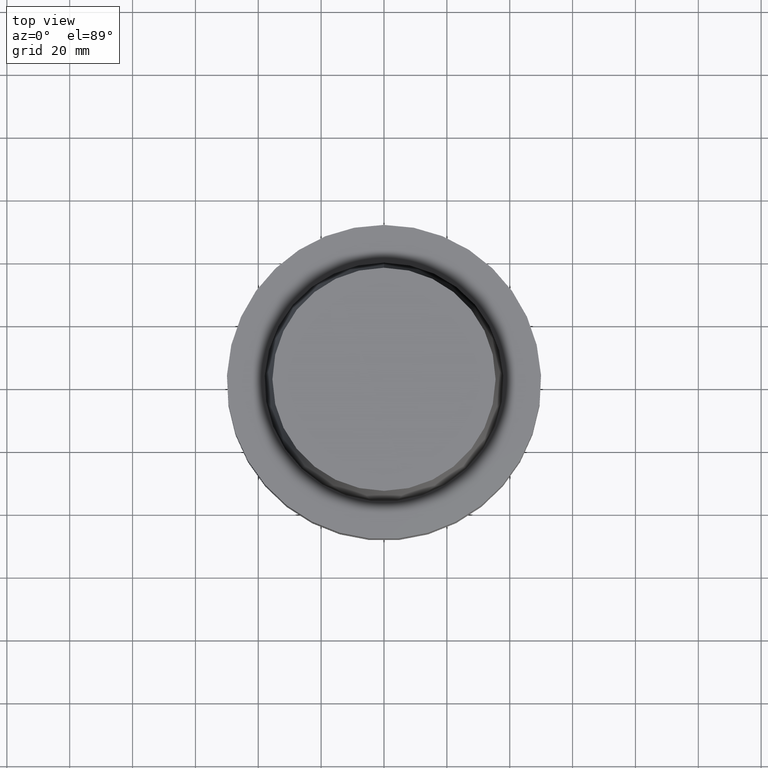
[diagram: clean part render]
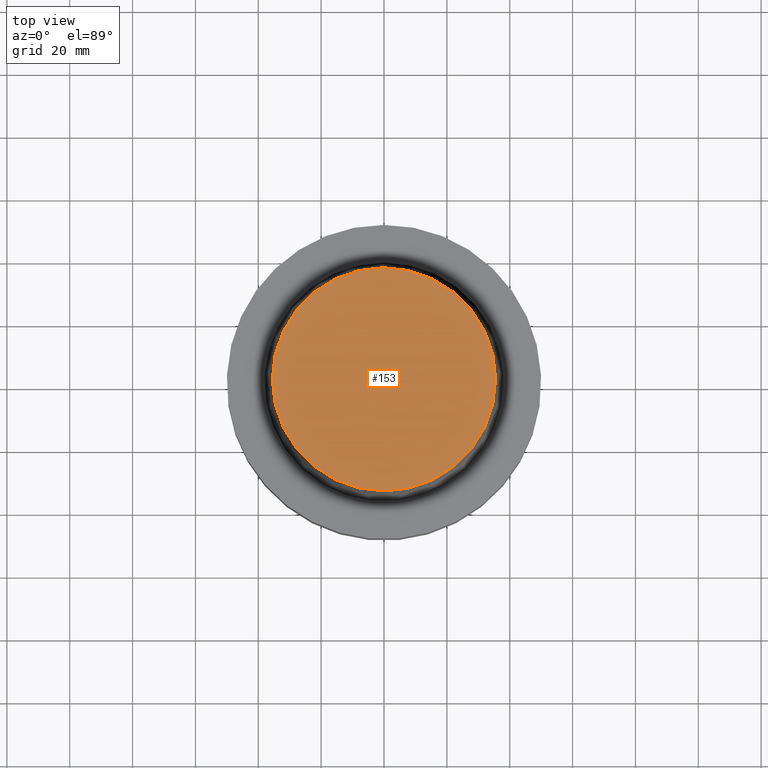
[diagram: same view with one face highlighted and labeled with its STEP entity id]
A machine part, top view. The second image highlights one B-rep face of the part: STEP entity #153.
In plain terms, the highlighted planar face has unit normal (-0, -0, 1).
Its self-contained STEP definition (entity closure, byte-faithful):
#140=EDGE_CURVE('Unnamed[1]',#315,#315,#316,.T.);
#153=ADVANCED_FACE('Unnamed[1]',(#334),#335,.T.);
#315=VERTEX_POINT('',#536);
#316=CIRCLE('',#537,35.5000000015618);
#334=FACE_OUTER_BOUND('',#561,.T.);
#335=PLANE('',#562);
#536=CARTESIAN_POINT('',(-3.06161699786838E-015,35.5000000015618,50.0));
#537=AXIS2_PLACEMENT_3D('',#760,#761,#762);
#561=EDGE_LOOP('',(#779));
#562=AXIS2_PLACEMENT_3D('',#780,#781,#782);
#760=CARTESIAN_POINT('',(-3.06161699786838E-015,-6.12323399573676E-015,50.0));
#761=DIRECTION('',(6.12323399573677E-017,1.22464679914774E-016,-1.0));
#762=DIRECTION('',(-1.23259516440817E-032,1.0,1.22464679914774E-016));
#779=ORIENTED_EDGE('',*,*,#140,.F.);
#780=CARTESIAN_POINT('',(-3.06161699786838E-015,17.7500000007809,50.0));
#781=DIRECTION('',(-6.12323399573677E-017,-1.22464679914735E-016,1.0));
#782=DIRECTION('',(1.23259516440783E-032,-1.0,-1.22464679914735E-016));